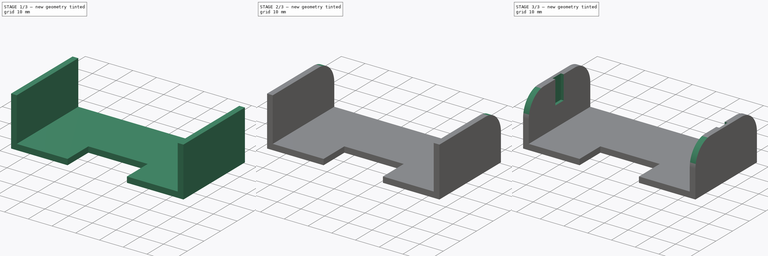
[diagram: build sequence overview — one tinted view per stage of 3, left to right]
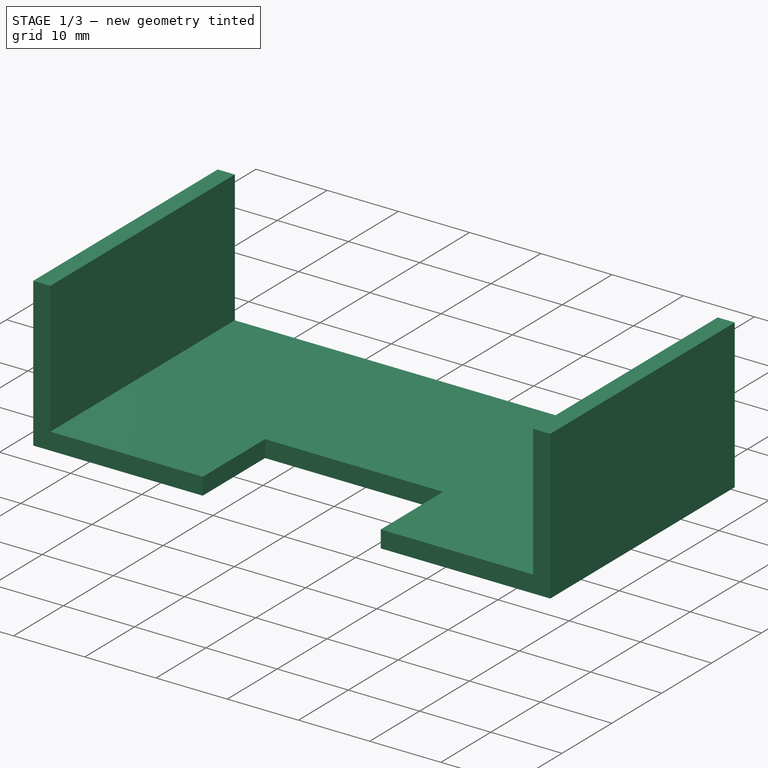
[diagram: stage 1 of 3 — iso view after this stage's code; geometry added in this stage tinted green]
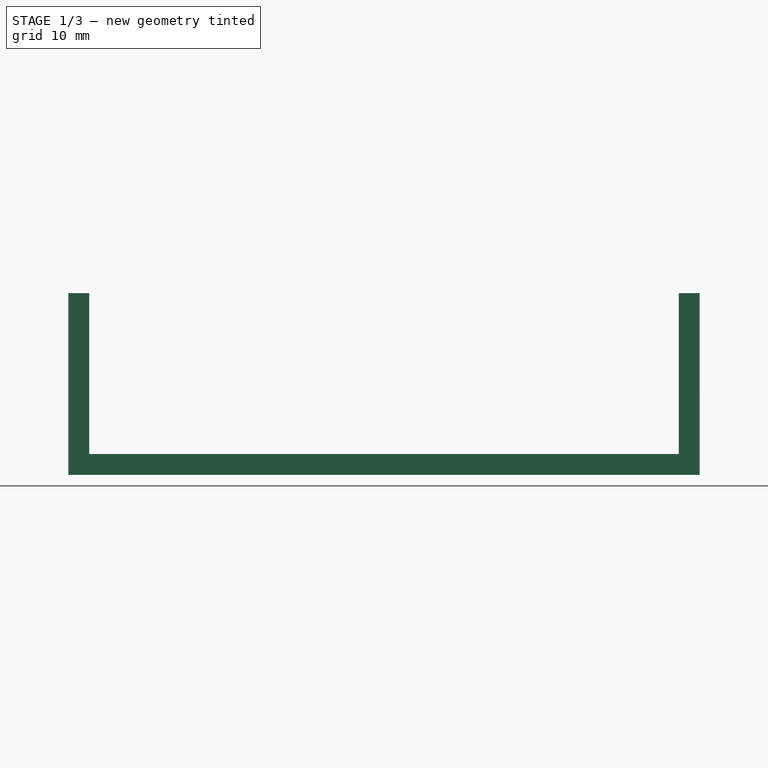
[diagram: stage 1 of 3 — front view after this stage's code; geometry added in this stage tinted green]
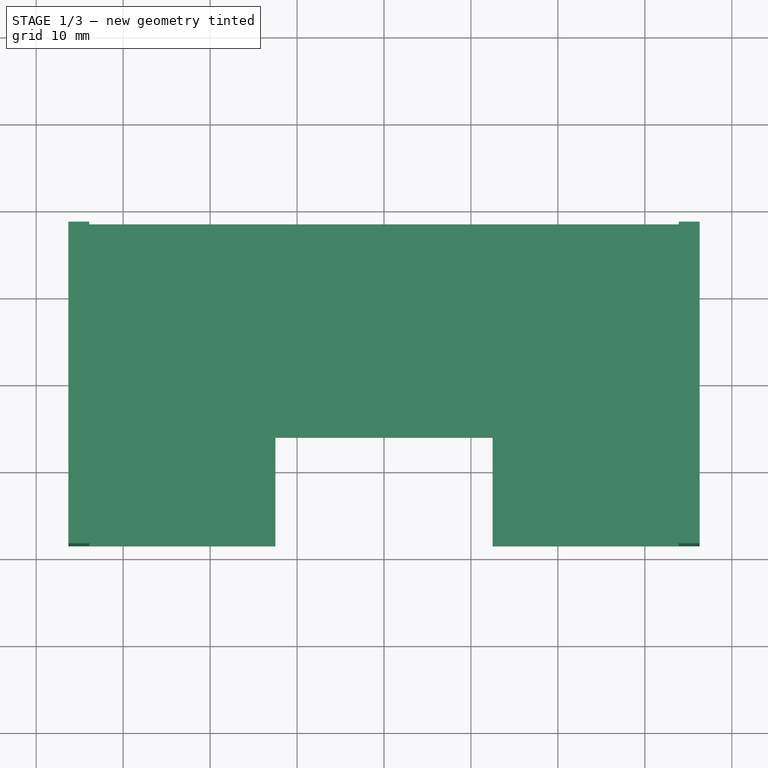
[diagram: stage 1 of 3 — top view after this stage's code; geometry added in this stage tinted green]
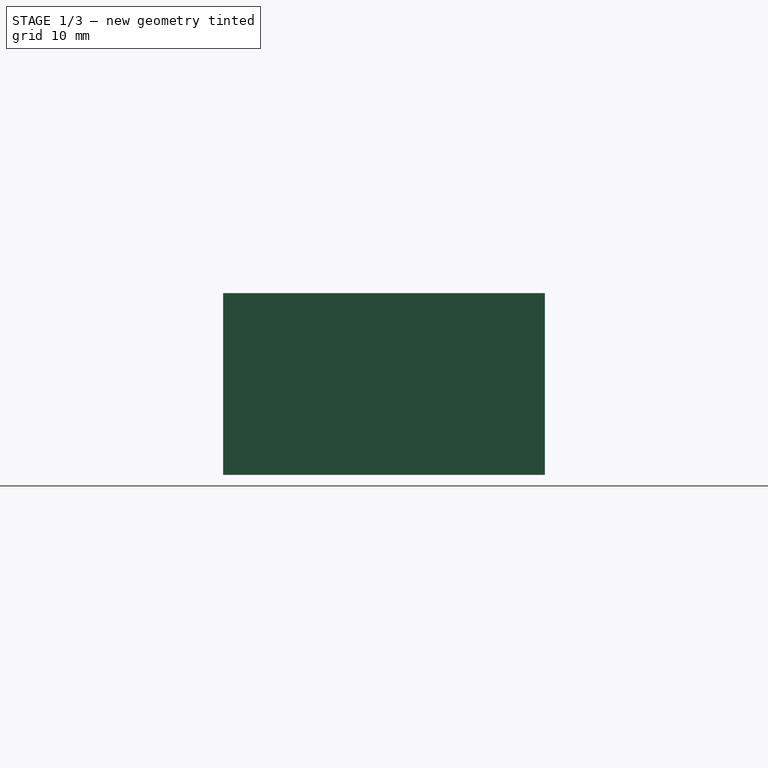
[diagram: stage 1 of 3 — right view after this stage's code; geometry added in this stage tinted green]
FCSTD DOCUMENT  (FreeCAD 0.16R6706 (Git))
Label: Batteriesockel
License: All rights reserved
LicenseURL: http://en.wikipedia.org/wiki/All_rights_reserved
objects: Sketcher::SketchObject×4, PartDesign::Fillet×4, PartDesign::Pad×2, PartDesign::Pocket×2
note: 16 computed .brp shape members not serialized (recipe doc carries the construction recipe); baked Part::Feature solids carry a one-line shape summary decoded from their .brp

FEATURE [Sketcher::SketchObject] Sketch  label="Basis"
  sketch-geometry (4):
    g0: LineSegment StartX=-36.3 StartY=18.5 StartZ=0 EndX=36.3 EndY=18.5 EndZ=0
    g1: LineSegment StartX=36.3 StartY=18.5 StartZ=0 EndX=36.3 EndY=-18.5 EndZ=0
    g2: LineSegment StartX=36.3 StartY=-18.5 StartZ=0 EndX=-36.3 EndY=-18.5 EndZ=0
    g3: LineSegment StartX=-36.3 StartY=-18.5 StartZ=0 EndX=-36.3 EndY=18.5 EndZ=0
  constraints (12):
    c: Coincident(g0,g1)
    c: Coincident(g1,g2)
    c: Coincident(g2,g3)
    c: Coincident(g3,g0)
    c: Horizontal(g0)
    c: Horizontal(g2)
    c: Vertical(g1)
    c: Vertical(g3)
    c: Symmetric(g0,g0,g-2)
    c: Symmetric(g0,g2,g-1)
    c: DistanceY(g3,g3) = 37
    c: DistanceX(g0,g0) = 72.6
FEATURE [PartDesign::Pad] Pad
  Length = 2.4
  Length2 = 100
  Sketch = -> Sketch
  Type = 0
FEATURE [Sketcher::SketchObject] Sketch001  label="Seiten"
  Placement = pos=(0,0,2.4) rot=(0,0,1;0rad)
  Support = -> Pad [Face6]
  sketch-geometry (8):
    g0: LineSegment StartX=-36.3 StartY=18.5 StartZ=0 EndX=-33.9 EndY=18.5 EndZ=0
    g1: LineSegment StartX=-33.9 StartY=18.5 StartZ=0 EndX=-33.9 EndY=-18.5 EndZ=0
    g2: LineSegment StartX=-33.9 StartY=-18.5 StartZ=0 EndX=-36.3 EndY=-18.5 EndZ=0
    g3: LineSegment StartX=-36.3 StartY=-18.5 StartZ=0 EndX=-36.3 EndY=18.5 EndZ=0
    g4: LineSegment StartX=33.9 StartY=18.5 StartZ=0 EndX=36.3 EndY=18.5 EndZ=0
    g5: LineSegment StartX=36.3 StartY=18.5 StartZ=0 EndX=36.3 EndY=-18.5 EndZ=0
    g6: LineSegment StartX=36.3 StartY=-18.5 StartZ=0 EndX=33.9 EndY=-18.5 EndZ=0
    g7: LineSegment StartX=33.9 StartY=-18.5 StartZ=0 EndX=33.9 EndY=18.5 EndZ=0
  constraints (22):
    c: Coincident(g0,g1)
    c: Coincident(g1,g2)
    c: Coincident(g2,g3)
    c: Coincident(g3,g0)
    c: Horizontal(g0)
    c: Horizontal(g2)
    c: Vertical(g1)
    c: Vertical(g3)
    c: DistanceX(g0,g0) = 2.4
    c: DistanceY(g3,g3) = 37
    c: DistanceX(g0,g-1) = 36.3
    c: Coincident(g4,g5)
    c: Coincident(g5,g6)
    c: Coincident(g6,g7)
    c: Coincident(g7,g4)
    c: Horizontal(g4)
    c: Horizontal(g6)
    c: Vertical(g5)
    c: Vertical(g7)
    c: Symmetric(g0,g4,g-2)
    c: Symmetric(g1,g6,g-2)
    c: Symmetric(g4,g5,g-1)
FEATURE [PartDesign::Pad] Pad001
  Length = 18.5
  Length2 = 100
  Sketch = -> Sketch001
  Type = 0
FEATURE [Sketcher::SketchObject] Sketch002
  Placement = pos=(0,0,2.4) rot=(0,0,1;0rad)
  Support = -> Pad001 [Face7]
  sketch-geometry (4):
    g0: LineSegment StartX=-12.5 StartY=-6 StartZ=0 EndX=12.5 EndY=-6 EndZ=0
    g1: LineSegment StartX=12.5 StartY=-6 StartZ=0 EndX=12.5 EndY=-18.5 EndZ=0
    g2: LineSegment StartX=12.5 StartY=-18.5 StartZ=0 EndX=-12.5 EndY=-18.5 EndZ=0
    g3: LineSegment StartX=-12.5 StartY=-18.5 StartZ=0 EndX=-12.5 EndY=-6 EndZ=0
  constraints (12):
    c: Coincident(g0,g1)
    c: Coincident(g1,g2)
    c: Coincident(g2,g3)
    c: Coincident(g3,g0)
    c: Horizontal(g0)
    c: Horizontal(g2)
    c: Vertical(g1)
    c: Vertical(g3)
    c: DistanceX(g0,g0) = 25
    c: Symmetric(g0,g0,g-2)
    c: DistanceY(g3,g3) = 12.5
    c: DistanceY(g1,g-1) = 18.5
FEATURE [PartDesign::Pocket] Pocket
  Length = 5
  Sketch = -> Sketch002
  Type = 0
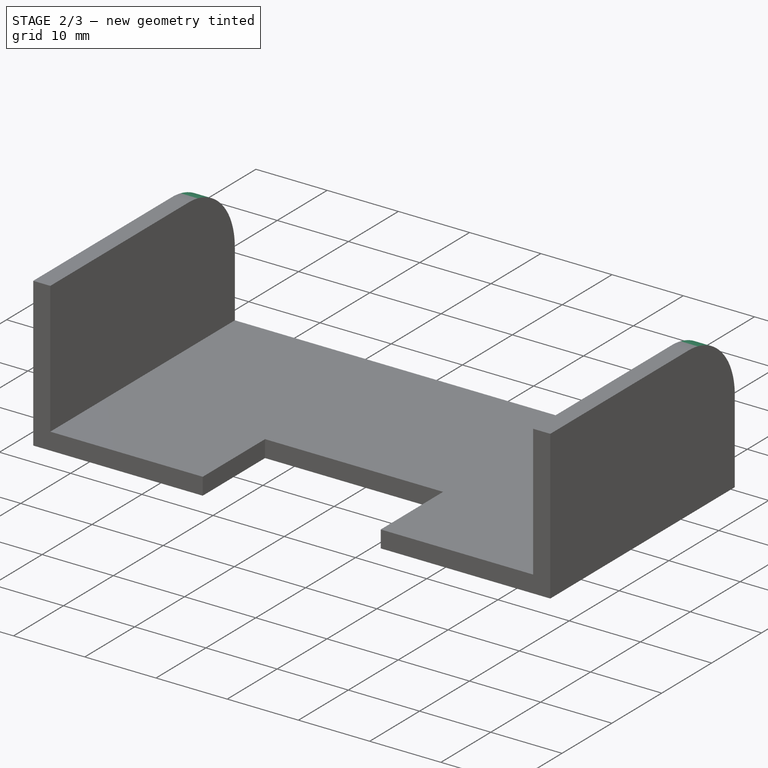
[diagram: stage 2 of 3 — iso view after this stage's code; geometry added in this stage tinted green]
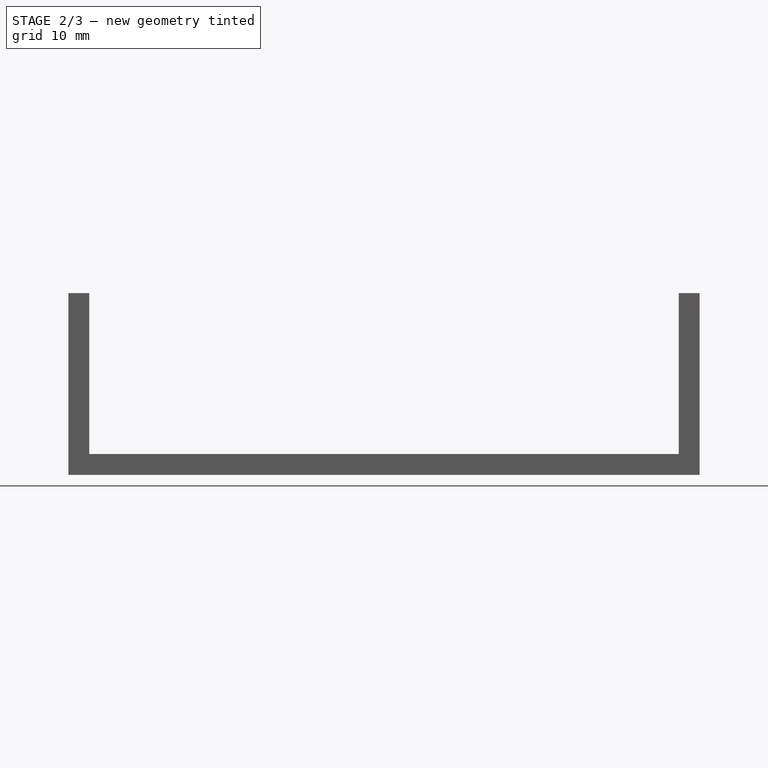
[diagram: stage 2 of 3 — front view after this stage's code; geometry added in this stage tinted green]
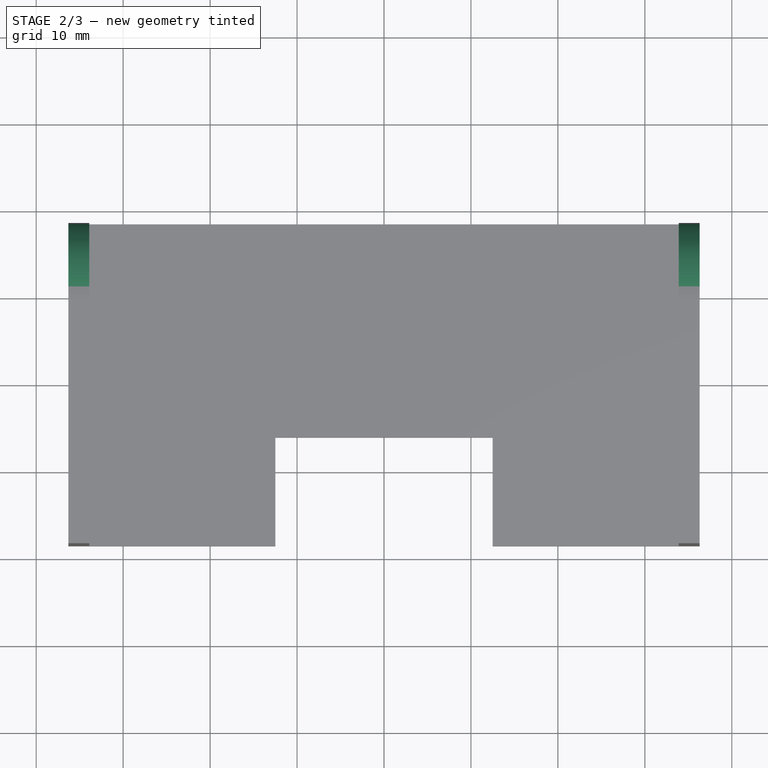
[diagram: stage 2 of 3 — top view after this stage's code; geometry added in this stage tinted green]
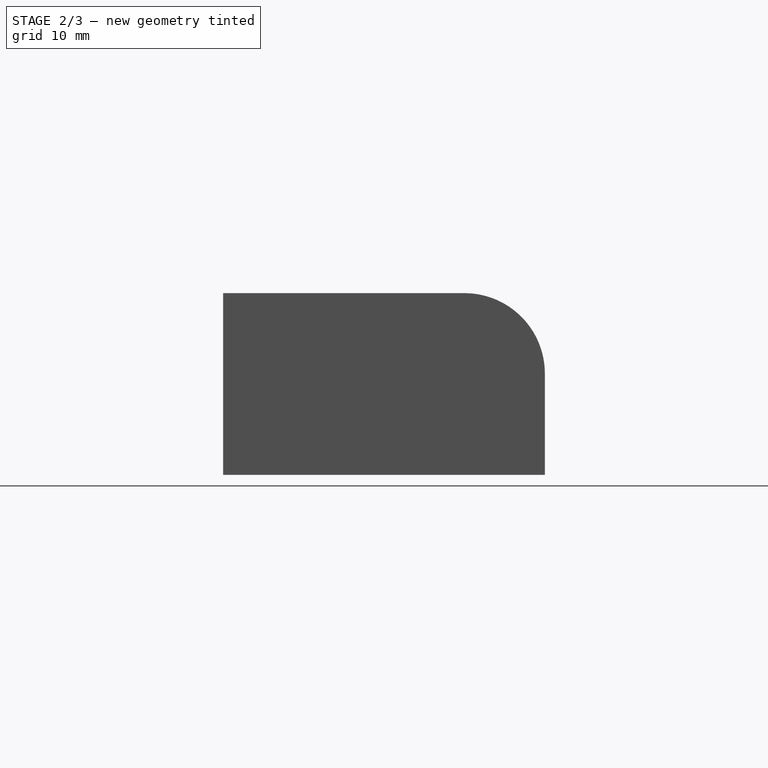
[diagram: stage 2 of 3 — right view after this stage's code; geometry added in this stage tinted green]
FEATURE [PartDesign::Fillet] Fillet
  Base = -> Pocket [Edge30]
  Radius = 9.25
FEATURE [PartDesign::Fillet] Fillet001
  Base = -> Fillet [Edge38]
  Radius = 9.25
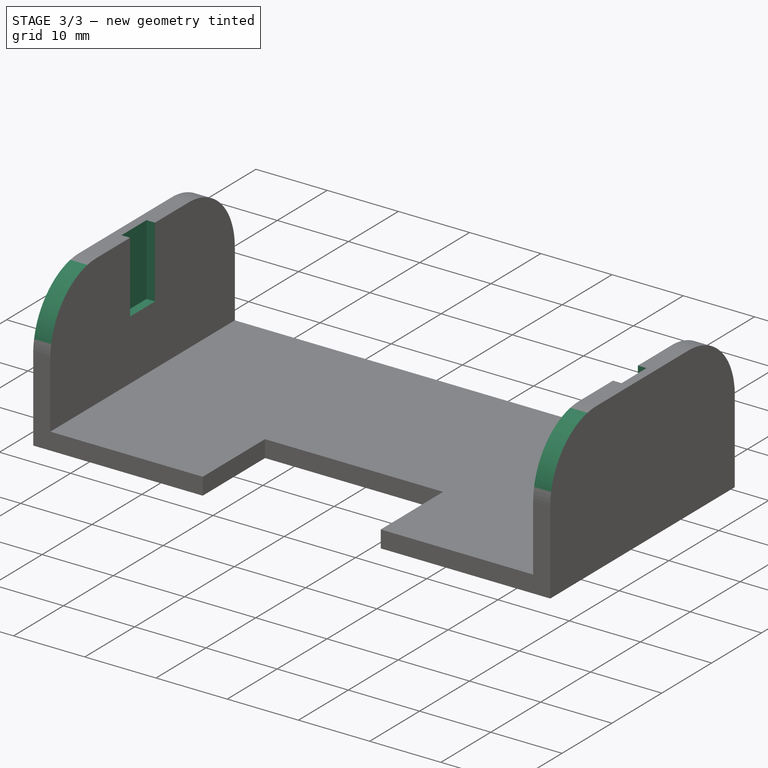
[diagram: stage 3 of 3 — iso view after this stage's code; geometry added in this stage tinted green]
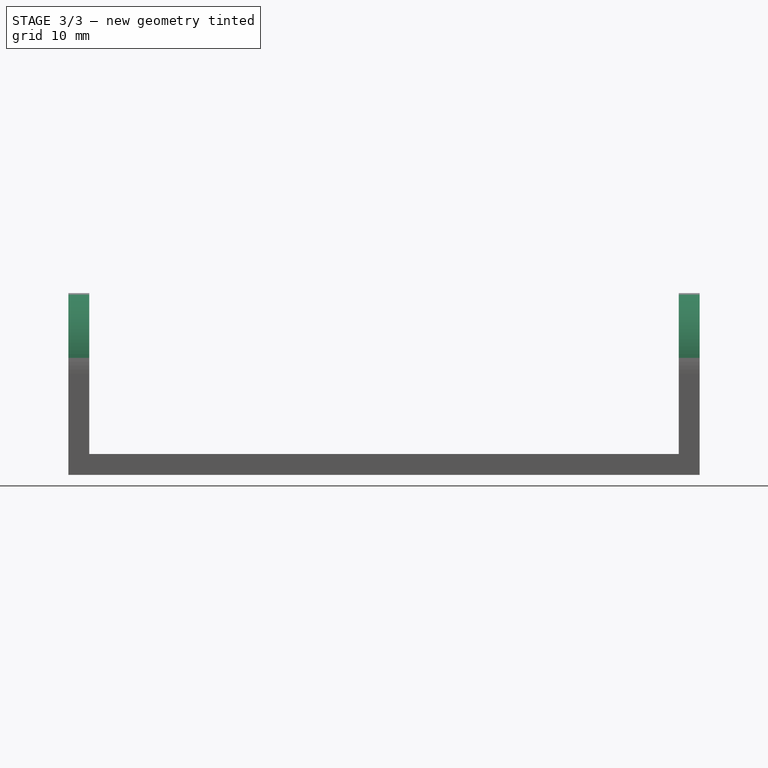
[diagram: stage 3 of 3 — front view after this stage's code; geometry added in this stage tinted green]
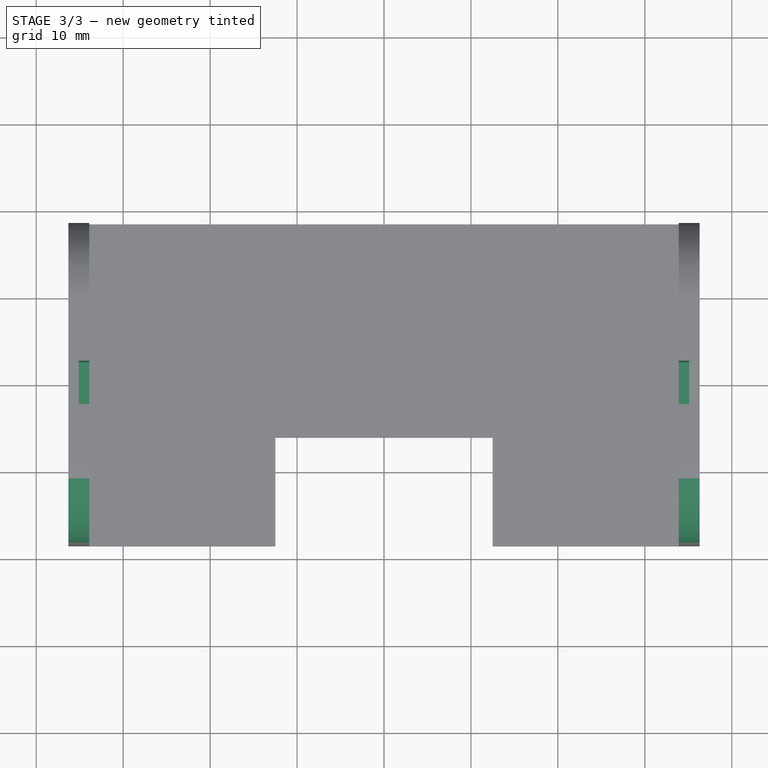
[diagram: stage 3 of 3 — top view after this stage's code; geometry added in this stage tinted green]
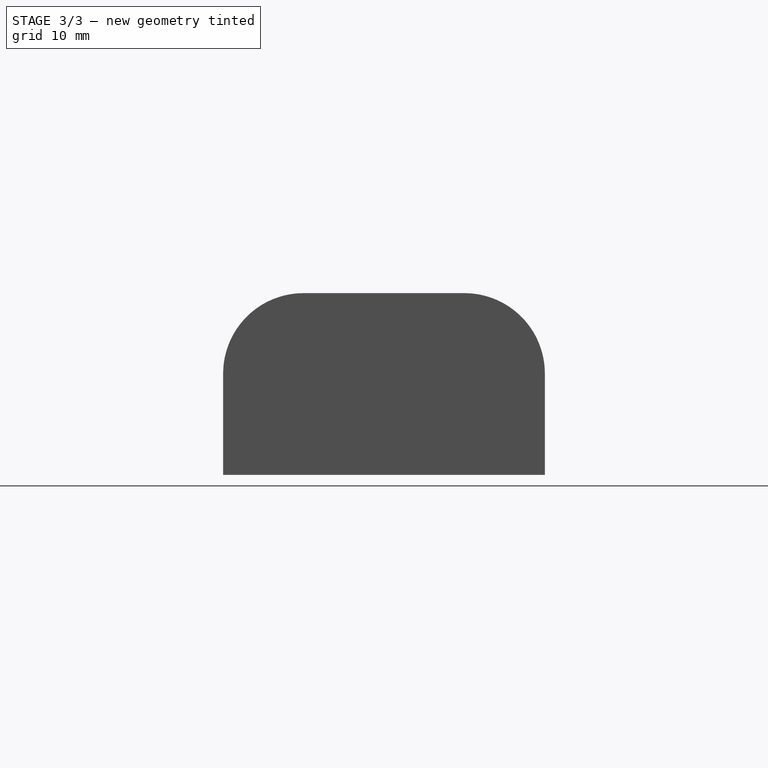
[diagram: stage 3 of 3 — right view after this stage's code; geometry added in this stage tinted green]
FEATURE [PartDesign::Fillet] Fillet002
  Base = -> Fillet001 [Edge19]
  Radius = 9.25
FEATURE [PartDesign::Fillet] Fillet003
  Base = -> Fillet002 [Edge51]
  Radius = 9.25
FEATURE [Sketcher::SketchObject] Sketch003
  Placement = pos=(0,0,20.9) rot=(0,0,1;0rad)
  Support = -> Fillet003 [Face2]
  sketch-geometry (8):
    g0: LineSegment StartX=-33.9 StartY=2.5 StartZ=0 EndX=-35.1 EndY=2.5 EndZ=0
    g1: LineSegment StartX=-35.1 StartY=2.5 StartZ=0 EndX=-35.1 EndY=-2.5 EndZ=0
    g2: LineSegment StartX=-35.1 StartY=-2.5 StartZ=0 EndX=-33.9 EndY=-2.5 EndZ=0
    g3: LineSegment StartX=-33.9 StartY=-2.5 StartZ=0 EndX=-33.9 EndY=2.5 EndZ=0
    g4: LineSegment StartX=33.9 StartY=2.5 StartZ=0 EndX=35.1 EndY=2.5 EndZ=0
    g5: LineSegment StartX=35.1 StartY=2.5 StartZ=0 EndX=35.1 EndY=-2.5 EndZ=0
    g6: LineSegment StartX=35.1 StartY=-2.5 StartZ=0 EndX=33.9 EndY=-2.5 EndZ=0
    g7: LineSegment StartX=33.9 StartY=-2.5 StartZ=0 EndX=33.9 EndY=2.5 EndZ=0
  constraints (22):
    c: Coincident(g0,g1)
    c: Coincident(g1,g2)
    c: Coincident(g2,g3)
    c: Coincident(g3,g0)
    c: Horizontal(g0)
    c: Horizontal(g2)
    c: Vertical(g1)
    c: Vertical(g3)
    c: Coincident(g4,g5)
    c: Coincident(g5,g6)
    c: Coincident(g6,g7)
    c: Coincident(g7,g4)
    c: Horizontal(g4)
    c: Horizontal(g6)
    c: Vertical(g5)
    c: Vertical(g7)
    c: Symmetric(g0,g4,g-2)
    c: Symmetric(g2,g6,g-2)
    c: DistanceX(g2,g2) = 1.2
    c: Symmetric(g4,g5,g-1)
    c: DistanceY(g3,g3) = 5
    c: DistanceX(g0,g4) = 67.8
FEATURE [PartDesign::Pocket] Pocket001
  Length = 10
  Sketch = -> Sketch003
  Type = 0
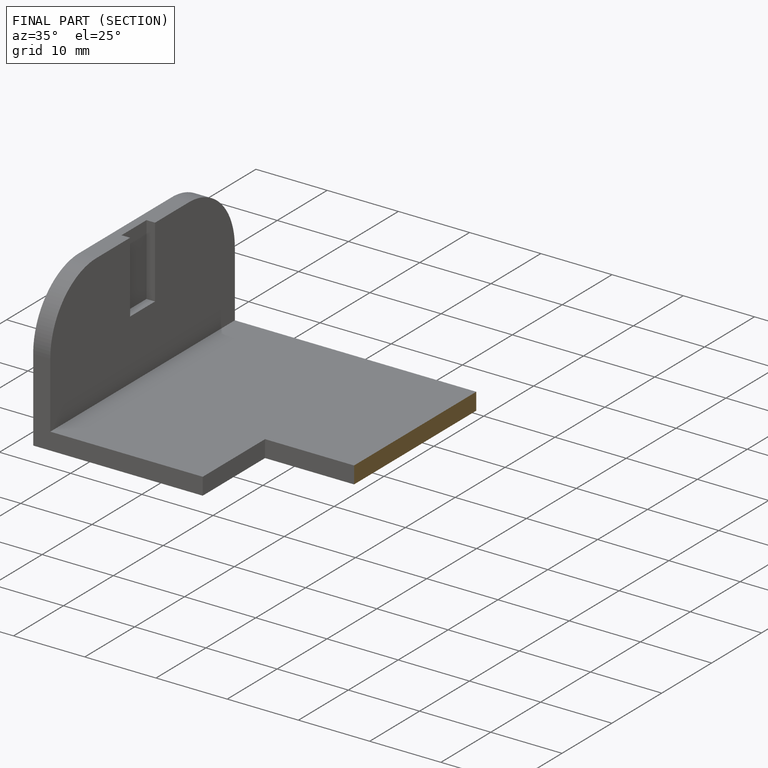
[diagram: finished part — half-section view (interior)]
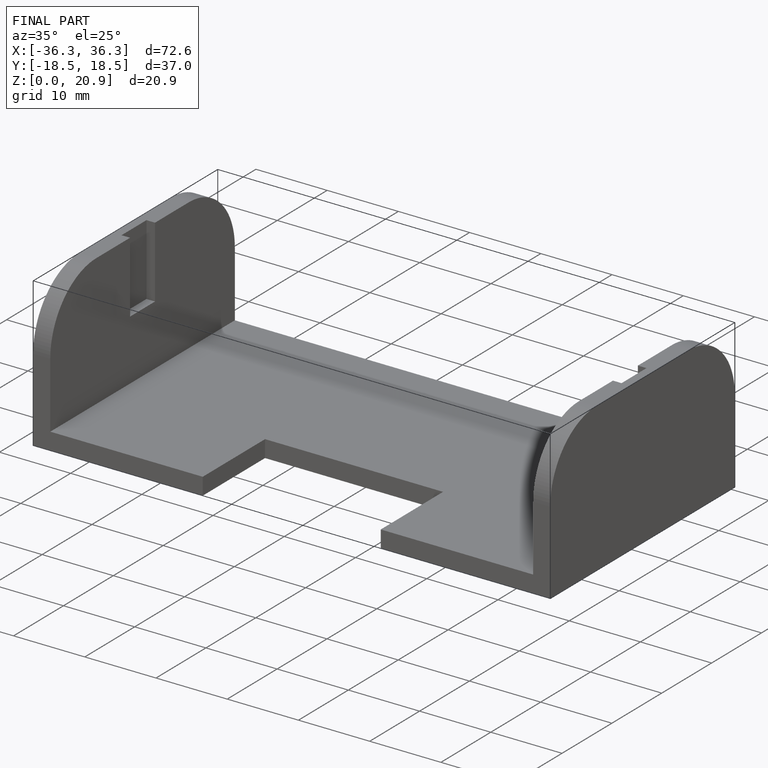
[diagram: finished part — iso view with bounding-box wireframe]
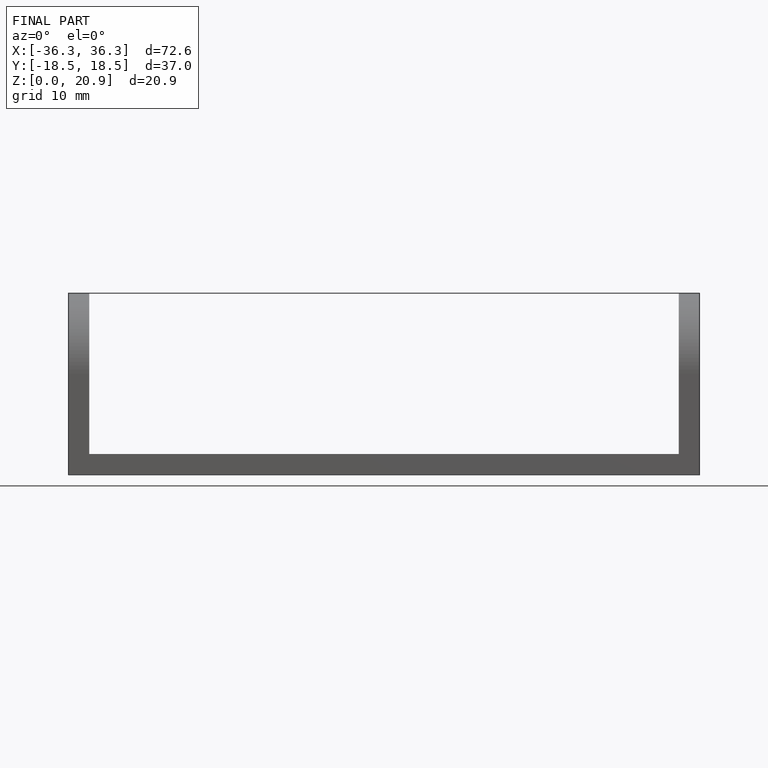
[diagram: finished part — front view with bounding-box wireframe]
